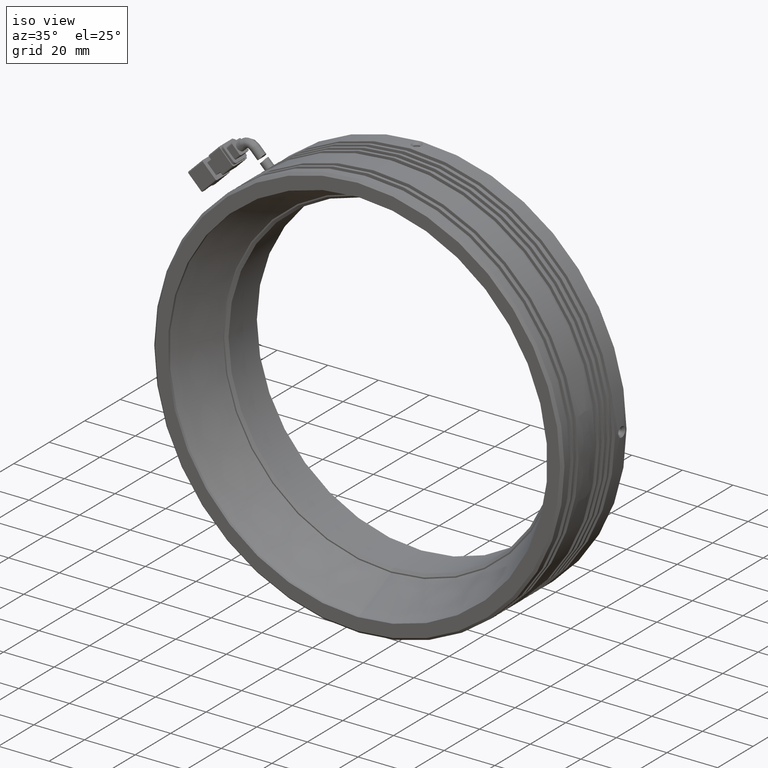
[diagram: clean part render]
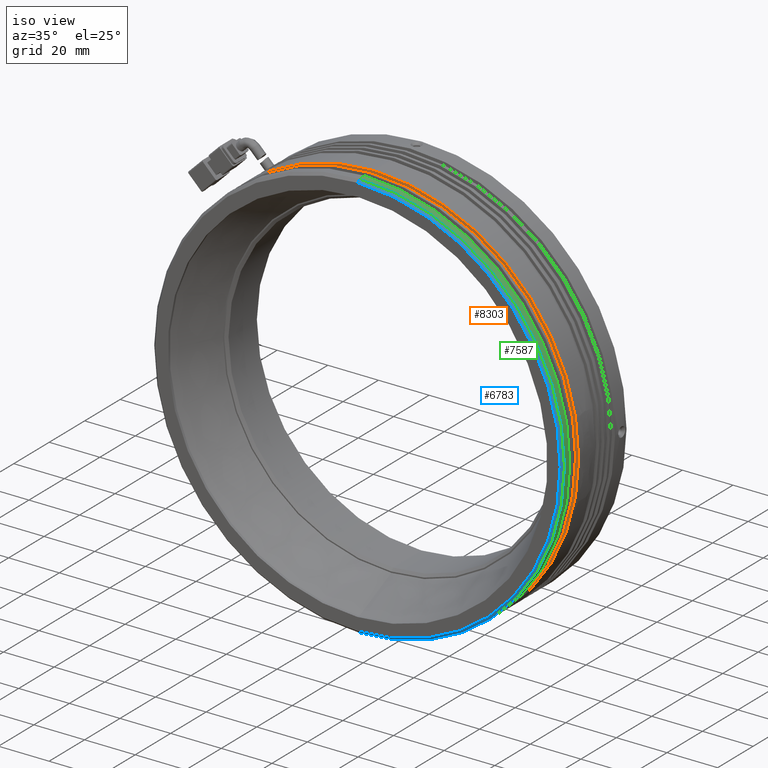
[diagram: same view with three faces highlighted in distinct colors, each labeled with its STEP entity id]
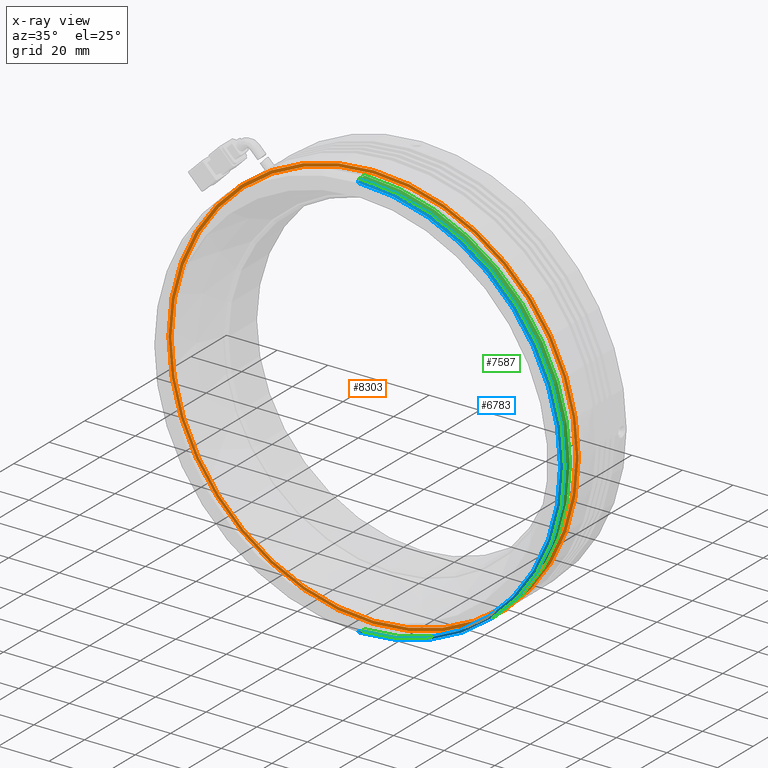
[diagram: x-ray of the same camera — body ghosted, the three highlighted faces saturated]
A machine part, iso view with three faces highlighted in distinct colors.
The next image is the same camera in x-ray (body ghosted, the three faces saturated) — at least one of them is partly hidden behind the body in this view.
Their STEP definitions:

[orange] entity #8303 — the highlighted planar face has unit normal (0, 1, 0).
#160 = AXIS2_PLACEMENT_3D ( 'NONE', #11812, #5807, #12837 ) ;
#504 = ORIENTED_EDGE ( 'NONE', *, *, #6728, .F. ) ;
#878 = CARTESIAN_POINT ( 'NONE',  ( -9.785022266880036000, -0.1288856281599498600, 0.0000000000000000000 ) ) ;
#954 = DIRECTION ( 'NONE',  ( 0.0000000000000000000, 0.0000000000000000000, -1.000000000000000000 ) ) ;
#1051 = DIRECTION ( 'NONE',  ( -0.0000000000000000000, -1.000000000000000000, -0.0000000000000000000 ) ) ;
#1100 = CARTESIAN_POINT ( 'NONE',  ( -9.785022266880036000, -0.1288856281599498600, 0.0000000000000000000 ) ) ;
#1509 = DIRECTION ( 'NONE',  ( 0.0000000000000000000, 0.0000000000000000000, -1.000000000000000000 ) ) ;
#1877 = CIRCLE ( 'NONE', #160, 80.99999999999995700 ) ;
#2960 = DIRECTION ( 'NONE',  ( 0.0000000000000000000, -0.0000000000000000000, 1.000000000000000000 ) ) ;
#2976 = DIRECTION ( 'NONE',  ( 0.0000000000000000000, 1.000000000000000000, 0.0000000000000000000 ) ) ;
#3001 = CARTESIAN_POINT ( 'NONE',  ( -9.785022266880036000, -0.1288856281599498600, 0.0000000000000000000 ) ) ;
#3290 = VERTEX_POINT ( 'NONE', #4724 ) ;
#3362 = PLANE ( 'NONE',  #12672 ) ;
#3770 = EDGE_LOOP ( 'NONE', ( #12090, #504 ) ) ;
#4724 = CARTESIAN_POINT ( 'NONE',  ( -9.785022266880025300, -0.1288856281599498600, 80.99999999999995700 ) ) ;
#4913 = AXIS2_PLACEMENT_3D ( 'NONE', #878, #5120, #1509 ) ;
#4964 = VERTEX_POINT ( 'NONE', #11316 ) ;
#5120 = DIRECTION ( 'NONE',  ( 0.0000000000000000000, 1.000000000000000000, 0.0000000000000000000 ) ) ;
#5473 = EDGE_LOOP ( 'NONE', ( #7359, #5966 ) ) ;
#5807 = DIRECTION ( 'NONE',  ( 0.0000000000000000000, 1.000000000000000000, 0.0000000000000000000 ) ) ;
#5966 = ORIENTED_EDGE ( 'NONE', *, *, #8966, .F. ) ;
#6452 = AXIS2_PLACEMENT_3D ( 'NONE', #12996, #12976, #12963 ) ;
#6728 = EDGE_CURVE ( 'NONE', #3290, #6982, #11559, .T. ) ;
#6982 = VERTEX_POINT ( 'NONE', #12936 ) ;
#7359 = ORIENTED_EDGE ( 'NONE', *, *, #7716, .F. ) ;
#7636 = AXIS2_PLACEMENT_3D ( 'NONE', #1100, #1051, #954 ) ;
#7716 = EDGE_CURVE ( 'NONE', #7829, #4964, #9027, .T. ) ;
#7829 = VERTEX_POINT ( 'NONE', #8907 ) ;
#8303 = ADVANCED_FACE ( 'NONE', ( #8568, #8509 ), #3362, .F. ) ;
#8509 = FACE_BOUND ( 'NONE', #5473, .T. ) ;
#8568 = FACE_OUTER_BOUND ( 'NONE', #3770, .T. ) ;
#8907 = CARTESIAN_POINT ( 'NONE',  ( -9.785022266880036000, -0.1288856281599498600, -79.79999999999991200 ) ) ;
#8966 = EDGE_CURVE ( 'NONE', #4964, #7829, #12798, .T. ) ;
#9027 = CIRCLE ( 'NONE', #7636, 79.79999999999991200 ) ;
#11316 = CARTESIAN_POINT ( 'NONE',  ( -9.785022266880025300, -0.1288856281599498600, 79.79999999999991200 ) ) ;
#11559 = CIRCLE ( 'NONE', #4913, 80.99999999999995700 ) ;
#11812 = CARTESIAN_POINT ( 'NONE',  ( -9.785022266880036000, -0.1288856281599498600, 0.0000000000000000000 ) ) ;
#12090 = ORIENTED_EDGE ( 'NONE', *, *, #12547, .F. ) ;
#12547 = EDGE_CURVE ( 'NONE', #6982, #3290, #1877, .T. ) ;
#12672 = AXIS2_PLACEMENT_3D ( 'NONE', #3001, #2976, #2960 ) ;
#12798 = CIRCLE ( 'NONE', #6452, 79.79999999999991200 ) ;
#12837 = DIRECTION ( 'NONE',  ( 0.0000000000000000000, 0.0000000000000000000, -1.000000000000000000 ) ) ;
#12936 = CARTESIAN_POINT ( 'NONE',  ( -9.785022266880036000, -0.1288856281599498600, -80.99999999999995700 ) ) ;
#12963 = DIRECTION ( 'NONE',  ( 0.0000000000000000000, 0.0000000000000000000, -1.000000000000000000 ) ) ;
#12976 = DIRECTION ( 'NONE',  ( -0.0000000000000000000, -1.000000000000000000, -0.0000000000000000000 ) ) ;
#12996 = CARTESIAN_POINT ( 'NONE',  ( -9.785022266880036000, -0.1288856281599498600, 0.0000000000000000000 ) ) ;

[blue] entity #6783 — the highlighted conical surface has half-angle 45 deg.
#230 = EDGE_CURVE ( 'NONE', #1964, #7452, #5621, .T. ) ;
#249 = CARTESIAN_POINT ( 'NONE',  ( -9.785022266880036000, -9.128885628159958200, 79.99999999999998600 ) ) ;
#588 = DIRECTION ( 'NONE',  ( -0.0000000000000000000, 1.000000000000000000, 0.0000000000000000000 ) ) ;
#761 = DIRECTION ( 'NONE',  ( 8.659560562354931600E-017, 0.7071067811865475700, -0.7071067811865474600 ) ) ;
#939 = EDGE_CURVE ( 'NONE', #7452, #2942, #1307, .T. ) ;
#947 = CARTESIAN_POINT ( 'NONE',  ( -9.785022266880025300, -9.128885628159958200, -79.99999999999998600 ) ) ;
#1052 = CARTESIAN_POINT ( 'NONE',  ( -9.785022266880036000, -8.128885628159942200, 0.0000000000000000000 ) ) ;
#1307 = CIRCLE ( 'NONE', #4297, 81.00000000000000000 ) ;
#1463 = CARTESIAN_POINT ( 'NONE',  ( -9.785022266880025300, -8.128885628159942200, -81.00000000000000000 ) ) ;
#1526 = ORIENTED_EDGE ( 'NONE', *, *, #6799, .T. ) ;
#1964 = VERTEX_POINT ( 'NONE', #947 ) ;
#2164 = VERTEX_POINT ( 'NONE', #249 ) ;
#2393 = CARTESIAN_POINT ( 'NONE',  ( -9.785022266880036000, -8.128885628159942200, 0.0000000000000000000 ) ) ;
#2806 = ORIENTED_EDGE ( 'NONE', *, *, #7061, .F. ) ;
#2932 = DIRECTION ( 'NONE',  ( -0.0000000000000000000, -1.000000000000000000, -0.0000000000000000000 ) ) ;
#2942 = VERTEX_POINT ( 'NONE', #10237 ) ;
#3148 = ORIENTED_EDGE ( 'NONE', *, *, #939, .T. ) ;
#3708 = AXIS2_PLACEMENT_3D ( 'NONE', #8722, #8632, #8964 ) ;
#3780 = AXIS2_PLACEMENT_3D ( 'NONE', #1052, #588, #7432 ) ;
#4297 = AXIS2_PLACEMENT_3D ( 'NONE', #2393, #2932, #10514 ) ;
#4473 = CONICAL_SURFACE ( 'NONE', #3780, 81.00000000000000000, 0.7853981633974482800 ) ;
#5621 = LINE ( 'NONE', #1463, #5920 ) ;
#5920 = VECTOR ( 'NONE', #761, 1000.000000000000000 ) ;
#6783 = ADVANCED_FACE ( 'NONE', ( #7014 ), #4473, .T. ) ;
#6799 = EDGE_CURVE ( 'NONE', #2164, #1964, #9066, .T. ) ;
#7014 = FACE_OUTER_BOUND ( 'NONE', #10301, .T. ) ;
#7061 = EDGE_CURVE ( 'NONE', #2164, #2942, #10071, .T. ) ;
#7432 = DIRECTION ( 'NONE',  ( 0.0000000000000000000, 0.0000000000000000000, 1.000000000000000000 ) ) ;
#7452 = VERTEX_POINT ( 'NONE', #9135 ) ;
#8632 = DIRECTION ( 'NONE',  ( -0.0000000000000000000, 1.000000000000000000, 0.0000000000000000000 ) ) ;
#8722 = CARTESIAN_POINT ( 'NONE',  ( -9.785022266880036000, -9.128885628159958200, 0.0000000000000000000 ) ) ;
#8964 = DIRECTION ( 'NONE',  ( 0.0000000000000000000, 0.0000000000000000000, 1.000000000000000000 ) ) ;
#9066 = CIRCLE ( 'NONE', #3708, 79.99999999999998600 ) ;
#9110 = ORIENTED_EDGE ( 'NONE', *, *, #230, .T. ) ;
#9135 = CARTESIAN_POINT ( 'NONE',  ( -9.785022266880036000, -8.128885628159942200, -81.00000000000000000 ) ) ;
#9434 = CARTESIAN_POINT ( 'NONE',  ( -9.785022266880036000, -8.128885628159942200, 81.00000000000000000 ) ) ;
#9468 = DIRECTION ( 'NONE',  ( 0.0000000000000000000, 0.7071067811865475700, 0.7071067811865474600 ) ) ;
#9992 = VECTOR ( 'NONE', #9468, 1000.000000000000000 ) ;
#10071 = LINE ( 'NONE', #9434, #9992 ) ;
#10237 = CARTESIAN_POINT ( 'NONE',  ( -9.785022266880025300, -8.128885628159942200, 81.00000000000000000 ) ) ;
#10301 = EDGE_LOOP ( 'NONE', ( #1526, #9110, #3148, #2806 ) ) ;
#10514 = DIRECTION ( 'NONE',  ( 0.0000000000000000000, 4.283267841918042100E-017, 1.000000000000000000 ) ) ;

[green] entity #7587 — the highlighted cylindrical surface (partial cylindrical patch) has radius 81 mm, axis along (-0, -1, -0).
#939 = EDGE_CURVE ( 'NONE', #7452, #2942, #1307, .T. ) ;
#1307 = CIRCLE ( 'NONE', #4297, 81.00000000000000000 ) ;
#2393 = CARTESIAN_POINT ( 'NONE',  ( -9.785022266880036000, -8.128885628159942200, 0.0000000000000000000 ) ) ;
#2418 = LINE ( 'NONE', #10985, #6276 ) ;
#2654 = VERTEX_POINT ( 'NONE', #11831 ) ;
#2932 = DIRECTION ( 'NONE',  ( -0.0000000000000000000, -1.000000000000000000, -0.0000000000000000000 ) ) ;
#2942 = VERTEX_POINT ( 'NONE', #10237 ) ;
#2947 = EDGE_LOOP ( 'NONE', ( #11942, #5983, #5675, #12731 ) ) ;
#3415 = LINE ( 'NONE', #5323, #5174 ) ;
#4297 = AXIS2_PLACEMENT_3D ( 'NONE', #2393, #2932, #10514 ) ;
#5174 = VECTOR ( 'NONE', #6185, 1000.000000000000000 ) ;
#5323 = CARTESIAN_POINT ( 'NONE',  ( -9.785022266880036000, -37.73097191106735000, -81.00000000000000000 ) ) ;
#5675 = ORIENTED_EDGE ( 'NONE', *, *, #939, .F. ) ;
#5956 = DIRECTION ( 'NONE',  ( -0.0000000000000000000, -1.000000000000000000, -0.0000000000000000000 ) ) ;
#5983 = ORIENTED_EDGE ( 'NONE', *, *, #6550, .T. ) ;
#6185 = DIRECTION ( 'NONE',  ( -0.0000000000000000000, -1.000000000000000000, -0.0000000000000000000 ) ) ;
#6276 = VECTOR ( 'NONE', #8701, 1000.000000000000000 ) ;
#6351 = DIRECTION ( 'NONE',  ( 0.0000000000000000000, 0.0000000000000000000, -1.000000000000000000 ) ) ;
#6550 = EDGE_CURVE ( 'NONE', #10655, #2942, #2418, .T. ) ;
#6623 = CARTESIAN_POINT ( 'NONE',  ( -9.785022266880025300, -5.128885628159954600, 81.00000000000000000 ) ) ;
#6776 = AXIS2_PLACEMENT_3D ( 'NONE', #11956, #5956, #12965 ) ;
#7452 = VERTEX_POINT ( 'NONE', #9135 ) ;
#7484 = CYLINDRICAL_SURFACE ( 'NONE', #8142, 81.00000000000000000 ) ;
#7587 = ADVANCED_FACE ( 'NONE', ( #12520 ), #7484, .T. ) ;
#7653 = EDGE_CURVE ( 'NONE', #2654, #7452, #3415, .T. ) ;
#7849 = CARTESIAN_POINT ( 'NONE',  ( -9.785022266880036000, -37.73097191106735000, 0.0000000000000000000 ) ) ;
#8072 = DIRECTION ( 'NONE',  ( -0.0000000000000000000, -1.000000000000000000, -0.0000000000000000000 ) ) ;
#8142 = AXIS2_PLACEMENT_3D ( 'NONE', #7849, #8072, #6351 ) ;
#8701 = DIRECTION ( 'NONE',  ( -0.0000000000000000000, -1.000000000000000000, -0.0000000000000000000 ) ) ;
#9135 = CARTESIAN_POINT ( 'NONE',  ( -9.785022266880036000, -8.128885628159942200, -81.00000000000000000 ) ) ;
#10121 = CIRCLE ( 'NONE', #6776, 81.00000000000000000 ) ;
#10237 = CARTESIAN_POINT ( 'NONE',  ( -9.785022266880025300, -8.128885628159942200, 81.00000000000000000 ) ) ;
#10514 = DIRECTION ( 'NONE',  ( 0.0000000000000000000, 4.283267841918042100E-017, 1.000000000000000000 ) ) ;
#10655 = VERTEX_POINT ( 'NONE', #6623 ) ;
#10985 = CARTESIAN_POINT ( 'NONE',  ( -9.785022266880025300, -37.73097191106735000, 81.00000000000000000 ) ) ;
#11831 = CARTESIAN_POINT ( 'NONE',  ( -9.785022266880036000, -5.128885628159954600, -81.00000000000000000 ) ) ;
#11942 = ORIENTED_EDGE ( 'NONE', *, *, #12617, .T. ) ;
#11956 = CARTESIAN_POINT ( 'NONE',  ( -9.785022266880036000, -5.128885628159954600, 0.0000000000000000000 ) ) ;
#12520 = FACE_OUTER_BOUND ( 'NONE', #2947, .T. ) ;
#12617 = EDGE_CURVE ( 'NONE', #2654, #10655, #10121, .T. ) ;
#12731 = ORIENTED_EDGE ( 'NONE', *, *, #7653, .F. ) ;
#12965 = DIRECTION ( 'NONE',  ( 0.0000000000000000000, 0.0000000000000000000, -1.000000000000000000 ) ) ;